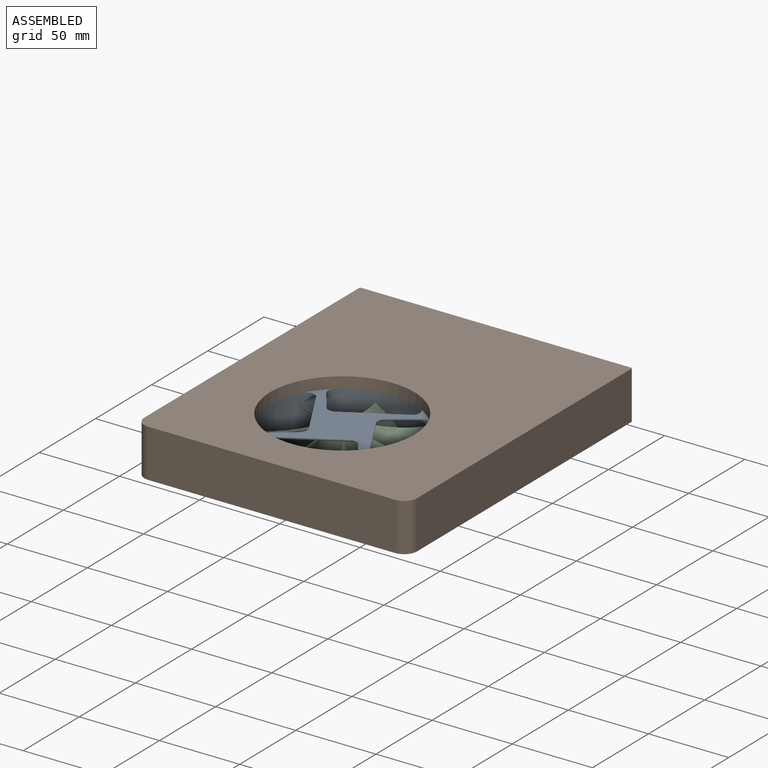
[diagram: assembled view]
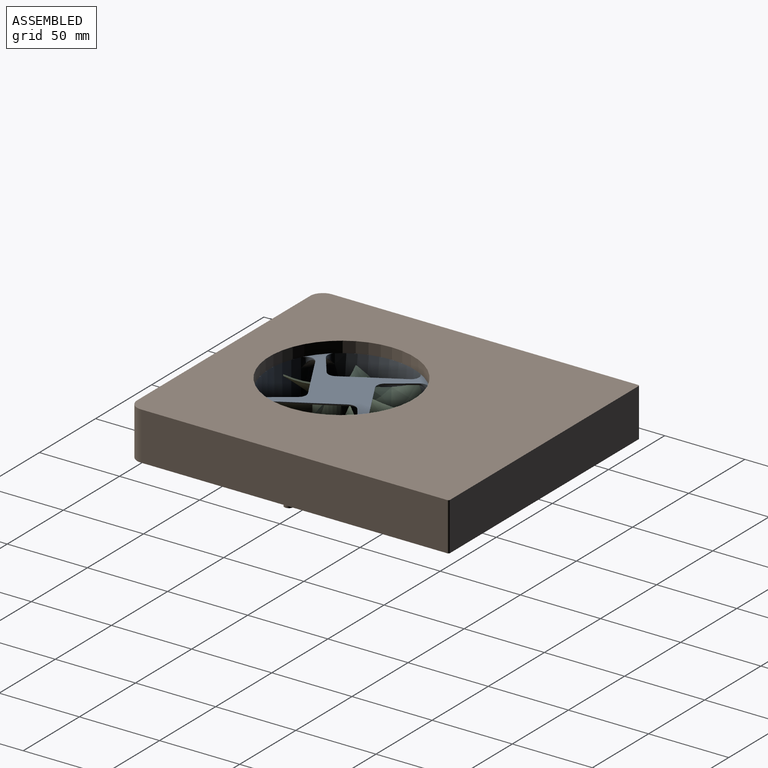
[diagram: assembled view, second angle]
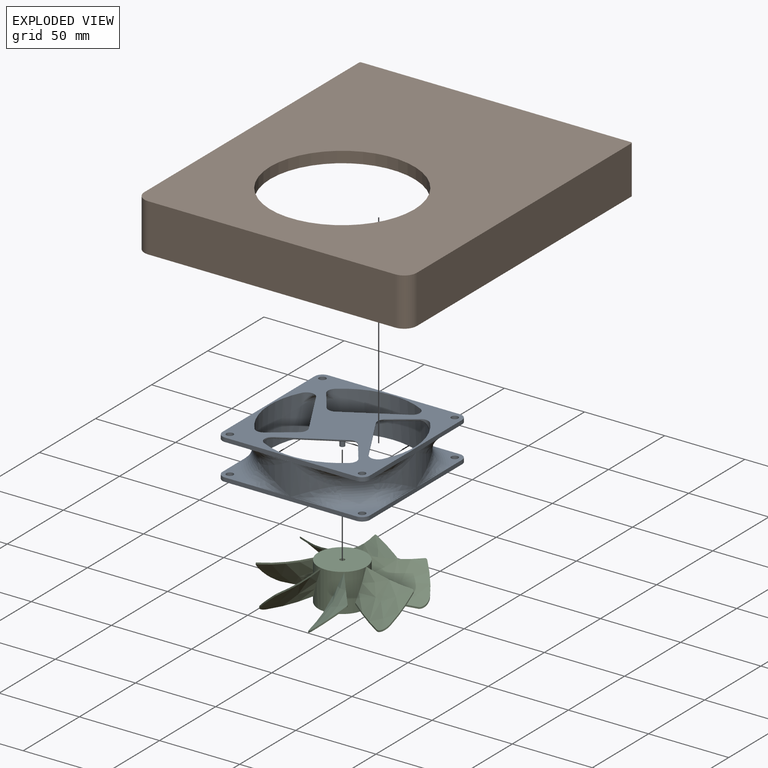
[diagram: exploded view]
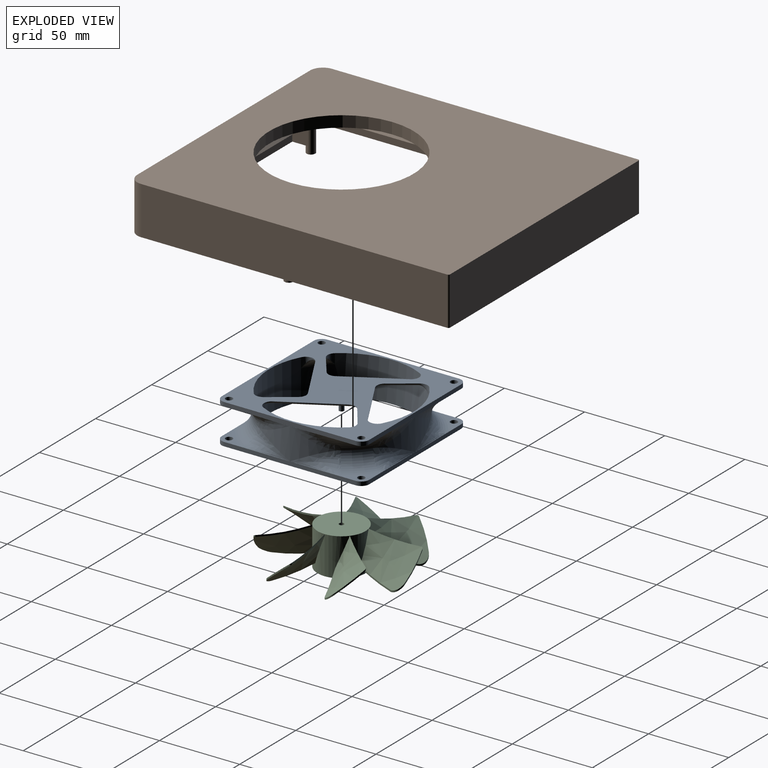
[diagram: exploded view, second angle]
ASSEMBLY  parts=3 mates=3
PART A: 118 faces, bbox 106.1x106.1x26.2 mm
  f0: torus R=40mm, axis (0,0,-1), area 73.1mm2, adj f1,f38,f78,f90,f104
  f1: bspline ~1.31x1.22mm, area 1.2mm2, adj f0,f2,f90,f111
  f2: cylinder r=1mm len=18.67mm, axis (-0.81,0.58,0), area 30.2mm2, adj f1,f3,f71,f104,f111
  f3: bspline ~6.52x3.81mm, area 9.6mm2, adj f2,f4,f71,f75
  f4: cylinder r=5mm len=6.52mm, axis (0,0,-1), area 1.8mm2, adj f3,f35,f36,f111
  f5: bspline ~6.49x3.72mm, area 9.4mm2, adj f6,f10,f72,f87
  f6: cylinder r=1mm len=38.52mm, axis (-0.87,0.49,0), area 63.9mm2, adj f5,f7,f72,f104,f106
  f7: torus R=6mm, axis (0,0,-1), area 4.2mm2, adj f6,f8,f94,f104
  f8: bspline ~7.6x6mm, area 5.8mm2, adj f7,f94,f95
  f9: bspline ~7.6x6mm, area 5.8mm2, adj f74,f98,f99
  f10: cylinder r=5mm len=6.49mm, axis (0,0,-1), area 1.8mm2, adj f5,f35,f105,f106
  f11: bspline ~6.52x3.81mm, area 9.6mm2, adj f67,f68,f73,f84
  f12: cylinder r=46mm len=52.47mm, axis (0,0,1), area 431.7mm2, adj f19,f56,f62,f65
  f13: plane 82.74x3.24mm, normal (-1,0,0), area 205mm2, adj f20,f27,f35,f52,f55,f113,f114
  f14: plane 82x2.5mm, normal (0,1,0), area 205mm2, adj f25,f27,f35,f44,f53,f112,f113
  f15: plane 82x2.5mm, normal (1,0,0), area 205mm2, adj f26,f35,f44,f45,f46,f58,f112
  f16: plane 14.06x14.06mm, normal (0,0,-1), area 67mm2, adj f30,f41,f47,f49,f57
  f17: plane 14.06x14.06mm, normal (0,0,-1), area 67mm2, adj f18,f41,f50,f116,f117
  f18: torus R=56mm, axis (0,0,-1), area 556.7mm2, adj f17,f19,f20,f52,f61,f62
  f19: bspline ~31.94x10mm, area 213.8mm2, adj f12,f18,f48
  f20: bspline ~31.94x10mm, area 213.8mm2, adj f13,f18,f21
  f21: cylinder r=46mm len=52.47mm, axis (0,0,1), area 431.7mm2, adj f20,f55,f60,f61
  f22: cylinder r=46mm len=52.47mm, axis (0,0,1), area 431.7mm2, adj f25,f53,f59,f64
  f23: cylinder r=46mm len=52.47mm, axis (0,0,1), area 431.7mm2, adj f26,f58,f63,f66
  f24: torus R=56mm, axis (0,0,-1), area 556.7mm2, adj f25,f26,f43,f44,f63,f64
  f25: bspline ~31.94x10mm, area 213.8mm2, adj f14,f22,f24
  f26: bspline ~31.94x10mm, area 213.8mm2, adj f15,f23,f24
  f27: plane 14.06x14.06mm, normal (0,0,1), area 67mm2, adj f13,f14,f32,f54,f113
  f28: plane 14.06x14.06mm, normal (0,0,-1), area 67mm2, adj f29,f31,f50,f51,f54
  f29: cylinder r=2.17mm len=4.33mm, axis (0,0,1), area 34mm2, adj f28,f37
  f30: plane 82.74x3.24mm, normal (1,0,0), area 205mm2, adj f16,f37,f42,f43,f47,f63,f66
  f31: cylinder r=5mm len=5mm, axis (0,0,1), area 19.6mm2, adj f28,f37,f50,f51
  f32: cylinder r=2.17mm len=4.33mm, axis (0,0,1), area 34mm2, adj f27,f35
  f33: cylinder r=2.17mm len=4.33mm, axis (0,0,1), area 34mm2, adj f35,f52
  f34: cylinder r=2.17mm len=4.33mm, axis (0,0,1), area 34mm2, adj f35,f45
  f35: plane 92x92mm, normal (0,0,-1), area 3837.9mm2, adj f4,f10,f13,f14,f15,f32,f33,f34
  f36: plane 33.78x19.03mm, normal (-0.87,0.49,0), area 9.7mm2, adj f4,f35,f75,f91
  f37: plane 92x92mm, normal (0,0,1), area 2021.9mm2, adj f29,f30,f31,f38,f40,f41,f42,f47
  f38: cylinder r=45mm len=90mm, axis (0,0,1), area 6620.7mm2, adj f0,f35,f37,f91,f92,f93,f94,f95
  f39: cylinder r=2.17mm len=4.33mm, axis (0,0,1), area 34mm2, adj f35,f44
  f40: cylinder r=2.17mm len=4.33mm, axis (0,0,1), area 34mm2, adj f37,f43
  f41: plane 82.74x3.24mm, normal (0,-1,0), area 205mm2, adj f16,f17,f37,f47,f62,f65,f117
  f42: cylinder r=5mm len=5mm, axis (0,0,1), area 19.6mm2, adj f30,f37,f43,f51
  f43: plane 14.06x14.06mm, normal (0,0,-1), area 67mm2, adj f24,f30,f40,f42,f51
  f44: plane 14.06x14.06mm, normal (0,0,1), area 67mm2, adj f14,f15,f24,f39,f112
  f45: plane 14.06x14.06mm, normal (0,0,1), area 67mm2, adj f15,f34,f46,f48,f57
  f46: cylinder r=5mm len=5mm, axis (0,0,1), area 19.6mm2, adj f15,f35,f45,f48
  f47: cylinder r=5mm len=5mm, axis (0,0,1), area 19.6mm2, adj f16,f30,f37,f41
  f48: plane 82.74x3.24mm, normal (0,-1,0), area 205mm2, adj f19,f35,f45,f46,f52,f56,f114
  f49: cylinder r=2.17mm len=4.33mm, axis (0,0,1), area 34mm2, adj f16,f37
  f50: plane 82.74x3.24mm, normal (-1,0,0), area 205mm2, adj f17,f28,f31,f37,f60,f61,f117
  f51: plane 82x2.5mm, normal (0,1,0), area 205mm2, adj f28,f31,f37,f42,f43,f59,f64
  f52: plane 14.06x14.06mm, normal (0,0,1), area 67mm2, adj f13,f18,f33,f48,f114
  f53: bspline ~31.94x10mm, area 213.8mm2, adj f14,f22,f54
  f54: torus R=56mm, axis (0,0,-1), area 556.7mm2, adj f27,f28,f53,f55,f59,f60
  f55: bspline ~31.94x10mm, area 213.8mm2, adj f13,f21,f54
  f56: bspline ~31.94x10mm, area 213.8mm2, adj f12,f48,f57
  f57: torus R=56mm, axis (0,0,-1), area 556.7mm2, adj f16,f45,f56,f58,f65,f66
  f58: bspline ~31.94x10mm, area 213.8mm2, adj f15,f23,f57
  f59: bspline ~31.94x10mm, area 213.8mm2, adj f22,f51,f54
  f60: bspline ~31.94x10mm, area 213.8mm2, adj f21,f50,f54
  f61: bspline ~31.94x10mm, area 213.8mm2, adj f18,f21,f50
  f62: bspline ~31.94x10mm, area 213.8mm2, adj f12,f18,f41
  f63: bspline ~31.94x10mm, area 213.8mm2, adj f23,f24,f30
  f64: bspline ~31.94x10mm, area 213.8mm2, adj f22,f24,f51
  f65: bspline ~31.94x10mm, area 213.8mm2, adj f12,f41,f57
  f66: bspline ~31.94x10mm, area 213.8mm2, adj f23,f30,f57
  f67: bspline ~2.15x1.64mm, area 1mm2, adj f11,f73,f84
  f68: cylinder r=5mm len=6.52mm, axis (0,0,-1), area 1.8mm2, adj f11,f35,f107,f108
  f69: bspline ~2.15x1.64mm, area 1mm2, adj f80,f81,f115
  f70: cylinder r=5mm len=6.52mm, axis (0,0,-1), area 1.8mm2, adj f35,f109,f110,f115
  f71: bspline ~2.15x1.64mm, area 1mm2, adj f2,f3,f75
  f72: bspline ~2.17x1.63mm, area 1mm2, adj f5,f6,f87
  f73: cylinder r=1mm len=38.96mm, axis (-0.49,-0.87,0), area 64.6mm2, adj f11,f67,f74,f104,f108
  f74: torus R=6mm, axis (0,0,-1), area 4.2mm2, adj f9,f73,f99,f104
  f75: cylinder r=1mm len=38.96mm, axis (0.49,0.87,0), area 64.6mm2, adj f3,f36,f71,f76,f104
  f76: torus R=6mm, axis (0,0,-1), area 4.2mm2, adj f75,f77,f91,f104
  f77: bspline ~7.6x6mm, area 5.8mm2, adj f76,f91,f92
  f78: bspline ~7.6x6mm, area 5.8mm2, adj f0,f79,f100
  f79: torus R=6mm, axis (0,0,-1), area 4.2mm2, adj f78,f80,f100,f104
  f80: cylinder r=1mm len=38.96mm, axis (0.87,-0.49,0), area 64.6mm2, adj f69,f79,f104,f110,f115
  f81: cylinder r=1mm len=18.67mm, axis (0.58,0.81,0), area 30.2mm2, adj f69,f82,f104,f109,f115
  f82: bspline ~1.31x1.22mm, area 1.2mm2, adj f81,f83,f98,f109
  f83: bspline ~7.43x5.94mm, area 5.1mm2, adj f82,f97,f98
  f84: cylinder r=1mm len=18.67mm, axis (0.81,-0.58,0), area 30.2mm2, adj f11,f67,f85,f104,f107
  f85: bspline ~1.31x1.22mm, area 1.2mm2, adj f84,f86,f95,f107
  f86: bspline ~7.43x5.94mm, area 5.1mm2, adj f85,f95,f96
  f87: cylinder r=1mm len=18.6mm, axis (-0.59,-0.81,0), area 30.4mm2, adj f5,f72,f88,f104,f105
  f88: bspline ~1.22x1.17mm, area 1.1mm2, adj f87,f89,f92,f105
  f89: bspline ~7.5x5.95mm, area 5.2mm2, adj f88,f92,f93
  f90: bspline ~7.43x5.94mm, area 5.1mm2, adj f0,f1,f101
  f91: cylinder r=5mm len=8.78mm, axis (0,0,1), area 20.9mm2, adj f35,f36,f38,f76,f77
  f92: torus R=40mm, axis (0,0,-1), area 74.9mm2, adj f38,f77,f88,f89,f104
  f93: cylinder r=5mm len=6.83mm, axis (0,0,1), area 20.1mm2, adj f35,f38,f89,f105
  f94: cylinder r=5mm len=8.78mm, axis (0,0,1), area 20.9mm2, adj f7,f8,f35,f38,f106
  f95: torus R=40mm, axis (0,0,-1), area 73.1mm2, adj f8,f38,f85,f86,f104
  f96: cylinder r=5mm len=6.76mm, axis (0,0,1), area 20.1mm2, adj f35,f38,f86,f107
  f97: cylinder r=5mm len=6.76mm, axis (0,0,1), area 20.1mm2, adj f35,f38,f83,f109
  f98: torus R=40mm, axis (0,0,-1), area 73.1mm2, adj f9,f38,f82,f83,f104
  f99: cylinder r=5mm len=8.78mm, axis (0,0,1), area 20.9mm2, adj f9,f35,f38,f74,f108
  f100: cylinder r=5mm len=8.78mm, axis (0,0,1), area 20.9mm2, adj f35,f38,f78,f79,f110
  f101: cylinder r=5mm len=6.76mm, axis (0,0,1), area 20.1mm2, adj f35,f38,f90,f111
  f102: plane 3x3mm, normal (0,0,1), area 7.1mm2, adj f103
  f103: cylinder r=1.5mm len=10mm, axis (0,0,1), area 94.2mm2, adj f102,f104
  f104: plane 64.51x64.51mm, normal (0,0,1), area 1342.2mm2, adj f0,f2,f6,f7,f73,f74,f75,f76
  f105: plane 14.34x10.51mm, normal (0.81,-0.59,0), area 4.5mm2, adj f10,f35,f87,f88,f93
  f106: plane 33.39x18.81mm, normal (-0.49,-0.87,0), area 9.6mm2, adj f6,f10,f35,f94
  f107: plane 14.42x10.29mm, normal (0.58,0.81,0), area 4.4mm2, adj f35,f68,f84,f85,f96
  f108: plane 33.78x19.03mm, normal (0.87,-0.49,0), area 9.7mm2, adj f35,f68,f73,f99
  f109: plane 14.42x10.29mm, normal (-0.81,0.58,0), area 4.4mm2, adj f35,f70,f81,f82,f97
  f110: plane 33.78x19.03mm, normal (0.49,0.87,0), area 9.7mm2, adj f35,f70,f80,f100
  f111: plane 14.42x10.29mm, normal (-0.58,-0.81,0), area 4.4mm2, adj f1,f2,f4,f35,f101
  f112: cylinder r=5mm len=5mm, axis (0,0,1), area 19.6mm2, adj f14,f15,f35,f44
  f113: cylinder r=5mm len=5mm, axis (0,0,1), area 19.6mm2, adj f13,f14,f27,f35
  f114: cylinder r=5mm len=5mm, axis (0,0,1), area 19.6mm2, adj f13,f35,f48,f52
  f115: bspline ~6.52x3.81mm, area 9.6mm2, adj f69,f70,f80,f81
  f116: cylinder r=2.17mm len=4.33mm, axis (0,0,1), area 34mm2, adj f17,f37
  f117: cylinder r=5mm len=5mm, axis (0,0,1), area 19.6mm2, adj f17,f37,f41,f50
PART B: 90 faces, bbox 170x200x34.5 mm
  f0: plane 196x166mm, normal (0,0,-1), area 23694.4mm2, adj f2,f5,f8,f11,f14,f30,f31,f32
  f1: plane 108x4mm, normal (0,-1,0), area 432mm2, adj f3,f25,f52,f60
  f2: plane 108x21mm, normal (0,-1,0), area 2268mm2, adj f0,f3,f52,f60
  f3: plane 108x3mm, normal (0,-0.71,0.71), area 458.2mm2, adj f1,f2,f52,f60
  f4: plane 86.6x5.25mm, normal (-1,0,0), area 347.7mm2, adj f6,f25,f28,f36,f59
  f5: plane 83.6x21mm, normal (-1,0,0), area 1755.6mm2, adj f0,f6,f34,f59
  f6: plane 83.6x3mm, normal (-0.71,0,0.71), area 354.7mm2, adj f4,f5,f36,f59
  f7: plane 108x4mm, normal (0,1,0), area 432mm2, adj f9,f25,f55,f56
  f8: plane 108x21mm, normal (0,1,0), area 2268mm2, adj f0,f9,f55,f56
  f9: plane 108x3mm, normal (0,0.71,0.71), area 458.2mm2, adj f7,f8,f55,f56
  f10: plane 20.6x5.25mm, normal (0,1,0), area 83.7mm2, adj f12,f25,f29,f40,f54
  f11: plane 21x17.6mm, normal (0,1,0), area 369.6mm2, adj f0,f12,f32,f54
  f12: plane 17.6x3mm, normal (0,0.71,0.71), area 74.7mm2, adj f10,f11,f40,f54
  f13: plane 20.6x4mm, normal (0,-1,0), area 82.4mm2, adj f15,f25,f27,f61
  f14: plane 23.6x21mm, normal (0,-1,0), area 495.6mm2, adj f0,f15,f35,f61
  f15: plane 23.6x3mm, normal (0,-0.71,0.71), area 93.8mm2, adj f13,f14,f37,f61
  f16: plane 168x30mm, normal (0,1,0), area 5040mm2, adj f17,f23,f24,f25
  f17: cylinder r=1mm len=30mm, axis (0,0,-1), area 47.1mm2, adj f16,f18,f24,f25
  f18: plane 191x30mm, normal (-1,0,0), area 5730mm2, adj f17,f19,f24,f25
  f19: cylinder r=8mm len=30mm, axis (0,0,-1), area 377mm2, adj f18,f20,f24,f25
  f20: plane 154x30mm, normal (0,-1,0), area 4620mm2, adj f19,f21,f24,f25
  f21: cylinder r=8mm len=30mm, axis (0,0,-1), area 377mm2, adj f20,f22,f24,f25
  f22: plane 191x30mm, normal (1,0,0), area 5730mm2, adj f21,f23,f24,f25
  f23: cylinder r=1mm len=30mm, axis (0,0,-1), area 47.1mm2, adj f16,f22,f24,f25
  f24: plane 200x170mm, normal (0,0,1), area 27610.4mm2, adj f16,f17,f18,f19,f20,f21,f22,f23
  f25: plane 200x170mm, normal (0,0,-1), area 3742.2mm2, adj f1,f4,f7,f10,f13,f16,f17,f18
  f26: plane 20.6x4mm, normal (0,-1,0), area 82.4mm2, adj f25,f29,f39,f53
  f27: plane 98x4mm, normal (-1,0,0), area 392mm2, adj f13,f25,f37,f58
  f28: plane 20.6x5.24mm, normal (0,1,0), area 83.7mm2, adj f4,f25,f36,f38,f57
  f29: plane 190x5.24mm, normal (1,0,0), area 761.3mm2, adj f10,f25,f26,f40,f41
  f30: plane 23.6x21mm, normal (0,-1,0), area 495.6mm2, adj f0,f31,f39,f53
  f31: plane 190x21mm, normal (1,0,0), area 3990mm2, adj f0,f30,f32,f41
  f32: cylinder r=6mm len=21mm, axis (0,0,-1), area 197.9mm2, adj f0,f11,f31,f40
  f33: plane 21x17.6mm, normal (0,1,0), area 369.6mm2, adj f0,f34,f38,f57
  f34: cylinder r=6mm len=21mm, axis (0,0,-1), area 197.9mm2, adj f0,f5,f33,f36
  f35: plane 101x21mm, normal (-1,0,0), area 2121mm2, adj f0,f14,f37,f58
  f36: cone r=1mm half-angle=45deg, axis (0,0,1), area 27.3mm2, adj f4,f6,f28,f34,f38
  f37: plane 101x3mm, normal (-0.71,0,0.71), area 422.1mm2, adj f15,f27,f35,f58
  f38: plane 17.6x3mm, normal (0,0.71,0.71), area 74.7mm2, adj f28,f33,f36,f57
  f39: plane 23.6x3mm, normal (0,-0.71,0.71), area 93.8mm2, adj f26,f30,f41,f53
  f40: cone r=1mm half-angle=45deg, axis (0,0,1), area 27.3mm2, adj f10,f12,f29,f32,f41
  f41: plane 190x3mm, normal (0.71,0,0.71), area 799.7mm2, adj f29,f31,f39,f40
  f42: plane 5.4x5.4mm, normal (0,0,-1), area 13.8mm2, adj f43,f71
  f43: cylinder r=2.7mm len=32.5mm, axis (0,0,-1), area 313.8mm2, adj f0,f25,f42,f52,f53
  f44: plane 5.4x5.4mm, normal (0,0,-1), area 13.8mm2, adj f45,f69
  f45: cylinder r=2.7mm len=32.5mm, axis (0,0,-1), area 313.8mm2, adj f0,f25,f44,f54,f55
  f46: plane 5.4x5.4mm, normal (0,0,-1), area 13.8mm2, adj f47,f67
  f47: cylinder r=2.7mm len=32.5mm, axis (0,0,-1), area 313.8mm2, adj f0,f25,f46,f60,f61
  f48: plane 5.4x5.4mm, normal (0,0,-1), area 13.8mm2, adj f49,f65
  f49: cylinder r=2.7mm len=32.5mm, axis (0,0,-1), area 313.8mm2, adj f0,f25,f48,f58,f59
  f50: plane 5.4x5.4mm, normal (0,0,-1), area 13.8mm2, adj f51,f63
  f51: cylinder r=2.7mm len=32.5mm, axis (0,0,-1), area 313.8mm2, adj f0,f25,f50,f56,f57
  f52: plane 28x12.7mm, normal (1,0,0), area 339.1mm2, adj f0,f1,f2,f3,f25,f43
  f53: plane 28x12.7mm, normal (-1,0,0), area 339.1mm2, adj f0,f25,f26,f30,f39,f43
  f54: plane 28x12.7mm, normal (-1,0,0), area 339.1mm2, adj f0,f10,f11,f12,f25,f45
  f55: plane 28x12.7mm, normal (1,0,0), area 339.1mm2, adj f0,f7,f8,f9,f25,f45
  f56: plane 28x12.7mm, normal (-1,0,0), area 339.1mm2, adj f0,f7,f8,f9,f25,f51
  f57: plane 28x12.7mm, normal (1,0,0), area 339.1mm2, adj f0,f25,f28,f33,f38,f51
  f58: plane 28x6.3mm, normal (0,1,0), area 159.9mm2, adj f0,f25,f27,f35,f37,f49
  f59: plane 28x6.3mm, normal (0,-1,0), area 159.9mm2, adj f0,f4,f5,f6,f25,f49
  f60: plane 28x12.7mm, normal (-1,0,0), area 339.1mm2, adj f0,f1,f2,f3,f25,f47
  f61: plane 28x12.7mm, normal (1,0,0), area 339.1mm2, adj f0,f13,f14,f15,f25,f47
  f62: cone r=0mm half-angle=59deg, axis (0,0,-1), area 10.6mm2, adj f63
  f63: cylinder r=1.7mm len=3.4mm, axis (0,0,-1), area 32mm2, adj f50,f62
  f64: cone r=0mm half-angle=59deg, axis (0,0,-1), area 10.6mm2, adj f65
  f65: cylinder r=1.7mm len=3.4mm, axis (0,0,-1), area 32mm2, adj f48,f64
  f66: cone r=0mm half-angle=59deg, axis (0,0,-1), area 10.6mm2, adj f67
  f67: cylinder r=1.7mm len=3.4mm, axis (0,0,-1), area 32mm2, adj f46,f66
  f68: cone r=0mm half-angle=59deg, axis (0,0,-1), area 10.6mm2, adj f69
  f69: cylinder r=1.7mm len=3.4mm, axis (0,0,-1), area 32mm2, adj f44,f68
  f70: cone r=0mm half-angle=59deg, axis (0,0,-1), area 10.6mm2, adj f71
  f71: cylinder r=1.7mm len=3.4mm, axis (0,0,-1), area 32mm2, adj f42,f70
  f72: plane 88x5mm, normal (0,-1,0), area 440mm2, adj f0,f73,f79,f80
  f73: cylinder r=2mm len=5mm, axis (0,0,1), area 15.7mm2, adj f0,f72,f74,f80
  f74: plane 88x5mm, normal (-1,0,0), area 440mm2, adj f0,f73,f75,f80
  f75: cylinder r=2mm len=5mm, axis (0,0,1), area 15.7mm2, adj f0,f74,f76,f80
  f76: plane 88x5mm, normal (0,1,0), area 440mm2, adj f0,f75,f77,f80
  f77: cylinder r=2mm len=5mm, axis (0,0,1), area 15.7mm2, adj f0,f76,f78,f80
  f78: plane 88x5mm, normal (1,0,0), area 440mm2, adj f0,f77,f79,f80
  f79: cylinder r=2mm len=5mm, axis (0,0,1), area 15.7mm2, adj f0,f72,f78,f80
  f80: plane 92x92mm, normal (0,0,-1), area 2062.5mm2, adj f72,f73,f74,f75,f76,f77,f78,f79
  f81: cylinder r=45mm len=90mm, axis (0,0,-1), area 1979.2mm2, adj f24,f80
  f82: cone r=0mm half-angle=59deg, axis (0,0,-1), area 10.6mm2, adj f83
  f83: cylinder r=1.7mm len=3.4mm, axis (0,0,-1), area 32mm2, adj f80,f82
  f84: cone r=0mm half-angle=59deg, axis (0,0,-1), area 10.6mm2, adj f85
  f85: cylinder r=1.7mm len=3.4mm, axis (0,0,-1), area 32mm2, adj f80,f84
  f86: cone r=0mm half-angle=59deg, axis (0,0,-1), area 10.6mm2, adj f87
  f87: cylinder r=1.7mm len=3.4mm, axis (0,0,-1), area 32mm2, adj f80,f86
  f88: cone r=0mm half-angle=59deg, axis (0,0,-1), area 10.6mm2, adj f89
  f89: cylinder r=1.7mm len=3.4mm, axis (0,0,-1), area 32mm2, adj f80,f88
PART C: 54 faces, bbox 91x90.8x26 mm
  f0: plane 24.39x5.85mm, normal (-0.99,0.17,0), area 24.7mm2, adj f1,f2,f3,f38
  f1: bspline ~33.27x26.5mm, area 706.2mm2, adj f0,f2,f35,f36,f37,f38
  f2: cylinder r=5mm len=6.39mm, axis (0,0,-1), area 8.5mm2, adj f0,f1,f3,f35
  f3: bspline ~32.97x26.31mm, area 706.1mm2, adj f0,f2,f35,f36,f37,f38
  f4: plane 18.5x16.47mm, normal (-0.75,-0.66,0), area 24.7mm2, adj f5,f6,f34,f38
  f5: bspline ~33.51x28.55mm, area 706.2mm2, adj f4,f31,f32,f33,f34,f38
  f6: bspline ~33.22x28.33mm, area 706.1mm2, adj f4,f31,f32,f33,f34,f38
  f7: plane 21.69x11.95mm, normal (-0.48,0.88,0), area 24.7mm2, adj f8,f9,f38,f43
  f8: bspline ~31.86x23mm, area 706.1mm2, adj f7,f10,f38,f41,f42,f43
  f9: bspline ~32.57x24.93mm, area 706.2mm2, adj f7,f10,f38,f41,f42,f43
  f10: cylinder r=45mm len=15.56mm, axis (0,0,-1), area 16mm2, adj f8,f9,f42,f43
  f11: bspline ~33.05x30.16mm, area 706.1mm2, adj f12,f13,f38,f50,f51,f52
  f12: cylinder r=45mm len=13.69mm, axis (0,0,-1), area 16mm2, adj f11,f13,f50,f53
  f13: cylinder r=1mm len=1.83mm, axis (0,0,-1), area 1.6mm2, adj f11,f12,f52,f53
  f14: cylinder r=1mm len=1.83mm, axis (0,0,-1), area 1.6mm2, adj f15,f47,f48,f49
  f15: bspline ~30.58x23mm, area 706.1mm2, adj f14,f16,f38,f46,f47,f49
  f16: cylinder r=5mm len=6.32mm, axis (0,0,-1), area 8.5mm2, adj f15,f46,f48,f49
  f17: bspline ~32.5x31.48mm, area 706.1mm2, adj f18,f19,f21,f22,f23,f38
  f18: cylinder r=45mm len=13.69mm, axis (0,0,-1), area 16mm2, adj f17,f19,f20,f21
  f19: cylinder r=5mm len=7.46mm, axis (0,0,-1), area 8.5mm2, adj f17,f18,f20,f22
  f20: bspline ~32.78x31.74mm, area 706.2mm2, adj f18,f19,f21,f22,f23,f38
  f21: cylinder r=1mm len=1.83mm, axis (0,0,-1), area 1.6mm2, adj f17,f18,f20,f23
  f22: plane 20.16x14.39mm, normal (0.81,-0.58,0), area 24.7mm2, adj f17,f19,f20,f38
  f23: plane 26.14x12.6mm, normal (-0.43,0.9,0), area 29mm2, adj f17,f20,f21,f38
  f24: cylinder r=1mm len=1.83mm, axis (0,0,-1), area 1.6mm2, adj f26,f27,f28,f29
  f25: plane 24.71x5.85mm, normal (0.05,-1,0), area 24.7mm2, adj f27,f29,f30,f38
  f26: plane 26.14x12.6mm, normal (0.43,0.9,0), area 29mm2, adj f24,f27,f29,f38
  f27: bspline ~32.12x24.93mm, area 706.2mm2, adj f24,f25,f26,f28,f30,f38
  f28: cylinder r=45mm len=15.38mm, axis (0,0,-1), area 16mm2, adj f24,f27,f29,f30
  f29: bspline ~31.48x23mm, area 706.1mm2, adj f24,f25,f26,f28,f30,f38
  f30: cylinder r=5mm len=5.36mm, axis (0,0,-1), area 8.5mm2, adj f25,f27,f28,f29
  f31: cylinder r=45mm len=14.47mm, axis (0,0,-1), area 16mm2, adj f5,f6,f33,f34
  f32: plane 28.29x6.48mm, normal (0.97,0.22,0), area 29mm2, adj f5,f6,f33,f38
  f33: cylinder r=1mm len=1.83mm, axis (0,0,-1), area 1.6mm2, adj f5,f6,f31,f32
  f34: cylinder r=5mm len=7.45mm, axis (0,0,-1), area 8.5mm2, adj f4,f5,f6,f31
  f35: cylinder r=45mm len=14.13mm, axis (0,0,-1), area 16mm2, adj f1,f2,f3,f37
  f36: plane 22.69x18.1mm, normal (0.78,-0.62,0), area 29mm2, adj f1,f3,f37,f38
  f37: cylinder r=1mm len=1.83mm, axis (0,0,-1), area 1.6mm2, adj f1,f3,f35,f36
  f38: cylinder r=15mm len=30mm, axis (0,0,1), area 2185.6mm2, adj f0,f1,f3,f4,f5,f6,f7,f8
  f39: plane 30x30mm, normal (0,0,1), area 706.9mm2, adj f38
  f40: plane 30x30mm, normal (0,0,-1), area 699.8mm2, adj f38,f44
  f41: plane 29.01x6.01mm, normal (0,-1,0), area 29mm2, adj f8,f9,f38,f42
  f42: cylinder r=1mm len=1.83mm, axis (0,0,-1), area 1.6mm2, adj f8,f9,f10,f41
  f43: cylinder r=5mm len=7.06mm, axis (0,0,-1), area 8.5mm2, adj f7,f8,f9,f10
  f44: cylinder r=1.5mm len=10mm, axis (0,0,1), area 94.2mm2, adj f40,f45
  f45: plane 3x3mm, normal (0,0,-1), area 7.1mm2, adj f44
  f46: plane 23.79x6.84mm, normal (0.96,0.27,0), area 24.7mm2, adj f15,f16,f38,f48
  f47: plane 28.29x6.48mm, normal (-0.97,0.22,0), area 29mm2, adj f14,f15,f38,f48
  f48: bspline ~31.58x24.93mm, area 706.2mm2, adj f14,f16,f38,f46,f47,f49
  f49: cylinder r=45mm len=15.87mm, axis (0,0,-1), area 16mm2, adj f14,f15,f16,f48
  f50: cylinder r=5mm len=7.1mm, axis (0,0,-1), area 8.5mm2, adj f11,f12,f51,f53
  f51: plane 22.84x9.56mm, normal (0.38,0.92,0), area 24.7mm2, adj f11,f38,f50,f53
  f52: plane 22.69x18.1mm, normal (-0.78,-0.62,0), area 29mm2, adj f11,f13,f38,f53
  f53: bspline ~33.34x30.4mm, area 706.2mm2, adj f12,f13,f38,f50,f51,f52
PLACE A rot(axis=(0.71,0.71,0),180deg) t=(-5,-30,23)mm
PLACE B at identity fixed
PLACE C rot(axis=(-1,0,0),180deg) t=(-5,-30,21.75)mm
MATE revolute B.f88 <-> A.f39  axis (0,0,-1) through (36.25,11.25,23)mm
MATE revolute A.f0 <-> C.f10  axis (0,0,-1) through (-5,-30,11.75)mm
MATE revolute B.f84 <-> A.f33  axis (0,0,-1) through (-46.25,-71.25,23)mm
